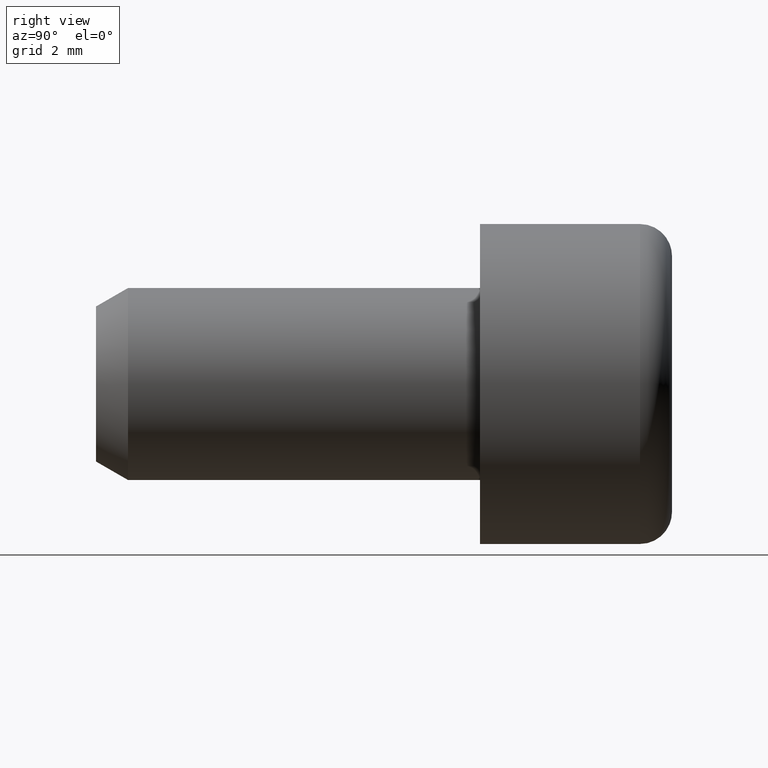
[diagram: clean part render]
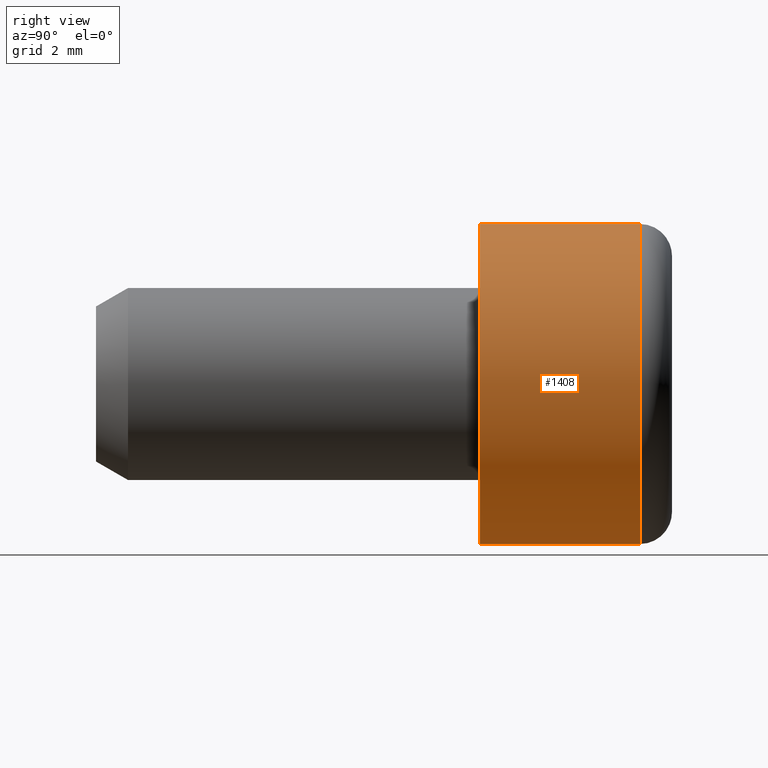
[diagram: same view with one face highlighted and labeled with its STEP entity id]
A machine part, right view. The second image highlights one B-rep face of the part: STEP entity #1408.
In plain terms, the highlighted cylindrical surface (bore or boss wall) has radius 5 mm, axis along (-0, -1, -0).
Its self-contained STEP definition (entity closure, byte-faithful):
#836 = AXIS2_PLACEMENT_3D ( 'NONE', #14723, #6574, #13251 ) ;
#1357 = ORIENTED_EDGE ( 'NONE', *, *, #7000, .T. ) ;
#1408 = ADVANCED_FACE ( 'NONE', ( #12855, #8575 ), #2763, .T. ) ;
#1487 = DIRECTION ( 'NONE',  ( 0.0000000000000000000, 0.0000000000000000000, -1.000000000000000000 ) ) ;
#2495 = CIRCLE ( 'NONE', #836, 5.000000000000000000 ) ;
#2763 = CYLINDRICAL_SURFACE ( 'NONE', #3476, 5.000000000000000000 ) ;
#3476 = AXIS2_PLACEMENT_3D ( 'NONE', #8383, #7030, #1487 ) ;
#4681 = CARTESIAN_POINT ( 'NONE',  ( 0.0000000000000000000, 5.000000000000000000, 0.0000000000000000000 ) ) ;
#5409 = EDGE_CURVE ( 'NONE', #6725, #6725, #13239, .T. ) ;
#6136 = DIRECTION ( 'NONE',  ( -0.0000000000000000000, -1.000000000000000000, -0.0000000000000000000 ) ) ;
#6574 = DIRECTION ( 'NONE',  ( 0.0000000000000000000, 1.000000000000000000, 0.0000000000000000000 ) ) ;
#6725 = VERTEX_POINT ( 'NONE', #13315 ) ;
#7000 = EDGE_CURVE ( 'NONE', #17604, #17604, #2495, .T. ) ;
#7030 = DIRECTION ( 'NONE',  ( -0.0000000000000000000, -1.000000000000000000, -0.0000000000000000000 ) ) ;
#8383 = CARTESIAN_POINT ( 'NONE',  ( 0.0000000000000000000, 6.000000000000000000, 0.0000000000000000000 ) ) ;
#8575 = FACE_OUTER_BOUND ( 'NONE', #14774, .T. ) ;
#8876 = AXIS2_PLACEMENT_3D ( 'NONE', #4681, #6136, #17128 ) ;
#12457 = EDGE_LOOP ( 'NONE', ( #14504 ) ) ;
#12855 = FACE_OUTER_BOUND ( 'NONE', #12457, .T. ) ;
#13239 = CIRCLE ( 'NONE', #8876, 5.000000000000000000 ) ;
#13251 = DIRECTION ( 'NONE',  ( 0.0000000000000000000, 0.0000000000000000000, 1.000000000000000000 ) ) ;
#13315 = CARTESIAN_POINT ( 'NONE',  ( 0.0000000000000000000, 5.000000000000000000, 5.000000000000000000 ) ) ;
#14504 = ORIENTED_EDGE ( 'NONE', *, *, #5409, .T. ) ;
#14723 = CARTESIAN_POINT ( 'NONE',  ( 0.0000000000000000000, 0.0000000000000000000, 0.0000000000000000000 ) ) ;
#14774 = EDGE_LOOP ( 'NONE', ( #1357 ) ) ;
#14905 = CARTESIAN_POINT ( 'NONE',  ( 0.0000000000000000000, 0.0000000000000000000, 5.000000000000000000 ) ) ;
#17128 = DIRECTION ( 'NONE',  ( 0.0000000000000000000, 0.0000000000000000000, 1.000000000000000000 ) ) ;
#17604 = VERTEX_POINT ( 'NONE', #14905 ) ;